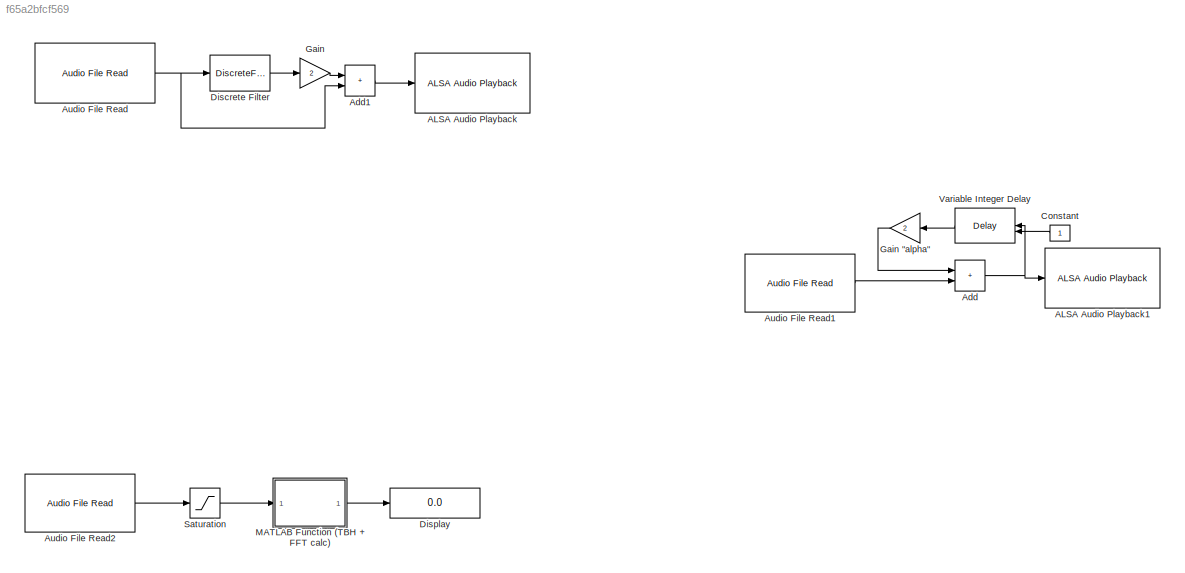
MODEL slx_f65a2bfcf569
KIND model
CONFIG AbsTol = auto
CONFIG EnableMultiTasking = off
CONFIG FixedStep = auto
CONFIG MaxStep = auto
CONFIG MinStep = auto
CONFIG RelTol = 1e-3
CONFIG SampleTimeConstraint = Unconstrained
CONFIG SolverName = VariableStepAuto
CONFIG StartTime = 0.0
CONFIG StopTime = 10.0
BLOCK [Reference] ALSA Audio Playback  REF=nvidiaAVlib/ALSA Audio Playback
  SourceBlock = nvidiaAVlib/ALSA Audio Playback
  SourceType = nvidiacoder.common.NvidiaALSAAudioPlayback
BLOCK [Reference] ALSA Audio Playback1  REF=nvidiaAVlib/ALSA Audio Playback
  SourceBlock = nvidiaAVlib/ALSA Audio Playback
  SourceType = nvidiacoder.common.NvidiaALSAAudioPlayback
BLOCK [Sum] Add
  IconShape = rectangular
BLOCK [Sum] Add1
  IconShape = rectangular
BLOCK [Reference] Audio File Read  REF=raspberrypiAVlib/Audio File Read
  SourceBlock = raspberrypiAVlib/Audio File Read
  SourceType = codertarget.raspi.internal.RaspiAudioFileRead
BLOCK [Reference] Audio File Read1  REF=nvidiaAVlib/Audio File Read
  SourceBlock = nvidiaAVlib/Audio File Read
  SourceType = nvidiacoder.common.NvidiaAudioFileRead
BLOCK [Reference] Audio File Read2  REF=nvidiaAVlib/Audio File Read
  SourceBlock = nvidiaAVlib/Audio File Read
  SourceType = nvidiacoder.common.NvidiaAudioFileRead
BLOCK [Constant] Constant
  NameLocation = top
BLOCK [DiscreteFilter] Discrete Filter
  InputPortMap = u0
BLOCK [Display] Display
  Decimation = 1
BLOCK [Gain] Gain
  Gain = 2
BLOCK [Gain] Gain "alpha"
  Gain = 2
  NameLocation = top
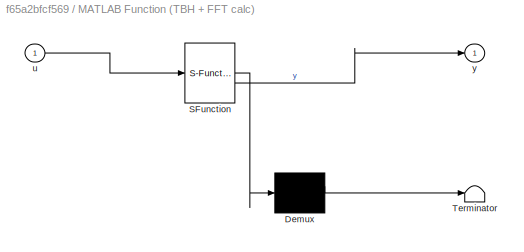
BLOCK [SubSystem] MATLAB Function (TBH + FFT calc)
  ErrorFcn = Stateflow.Translate.translate
  PermitHierarchicalResolution = ExplicitOnly
  SFBlockType = MATLAB Function
  TreatAsAtomicUnit = on
BLOCK [Demux] MATLAB Function (TBH + FFT calc)/ Demux 
  Outputs = 1
BLOCK [S-Function] MATLAB Function (TBH + FFT calc)/ SFunction 
  EnableBusSupport = off
  FunctionName = sf_sfun
  PortCounts = [1 2]
  SFcnIsStateOwnerBlock = off
  SFunctionDeploymentMode = off
  Tag = Stateflow S-Function 2
BLOCK [Terminator] MATLAB Function (TBH + FFT calc)/ Terminator 
BLOCK [Inport] MATLAB Function (TBH + FFT calc)/u
BLOCK [Outport] MATLAB Function (TBH + FFT calc)/y
BLOCK [Saturate] Saturation
  LowerLimit = -15
  UpperLimit = 15
BLOCK [Delay] Variable Integer Delay
  DelayLengthSource = Input port
  InputPortMap = u0,p1
  NameLocation = top
LINE Add1:1 -> ALSA Audio Playback:1
NET Add:1 -> ALSA Audio Playback1:1, Variable Integer Delay:1
LINE Audio File Read1:1 -> Add:2
LINE Audio File Read2:1 -> Saturation:1
NET Audio File Read:1 -> Add1:2, Discrete Filter:1
LINE Constant:1 -> Variable Integer Delay:2
LINE Discrete Filter:1 -> Gain:1
LINE Gain "alpha":1 -> Add:1
LINE Gain:1 -> Add1:1
LINE MATLAB Function (TBH + FFT calc):1 -> Display:1
LINE Saturation:1 -> MATLAB Function (TBH + FFT calc):1
LINE Variable Integer Delay:1 -> Gain "alpha":1
note: NET lines group one-source signal fan-out (src -> all destinations, sorted); 1:1 wires keep LINE
CHART MATLAB Function
(TBH + FFT calc) states=1 transitions=1
  STATE_LABEL 'eML_blk_kernel()'
  STATE_LABEL 'SCRIPT:\nfunction y = fcn(u)\n\ny = u;\n'
CHART  states=0 transitions=0
